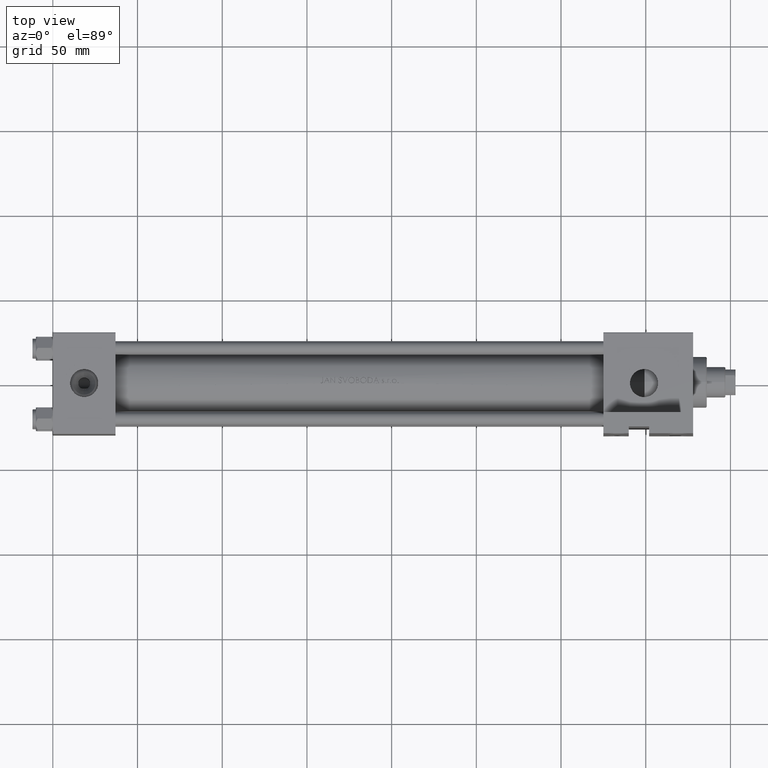
[diagram: clean part render]
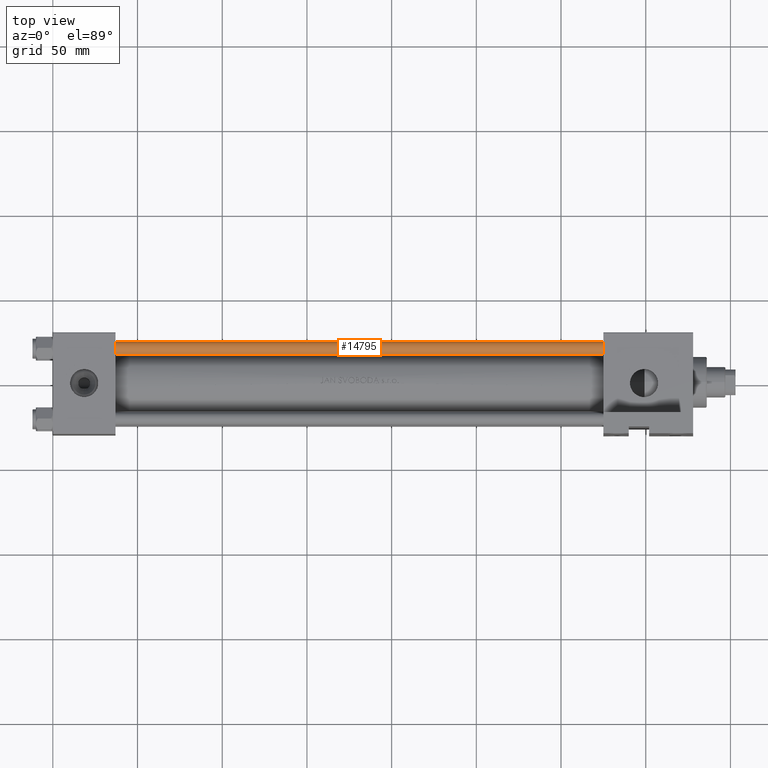
[diagram: same view with one face highlighted and labeled with its STEP entity id]
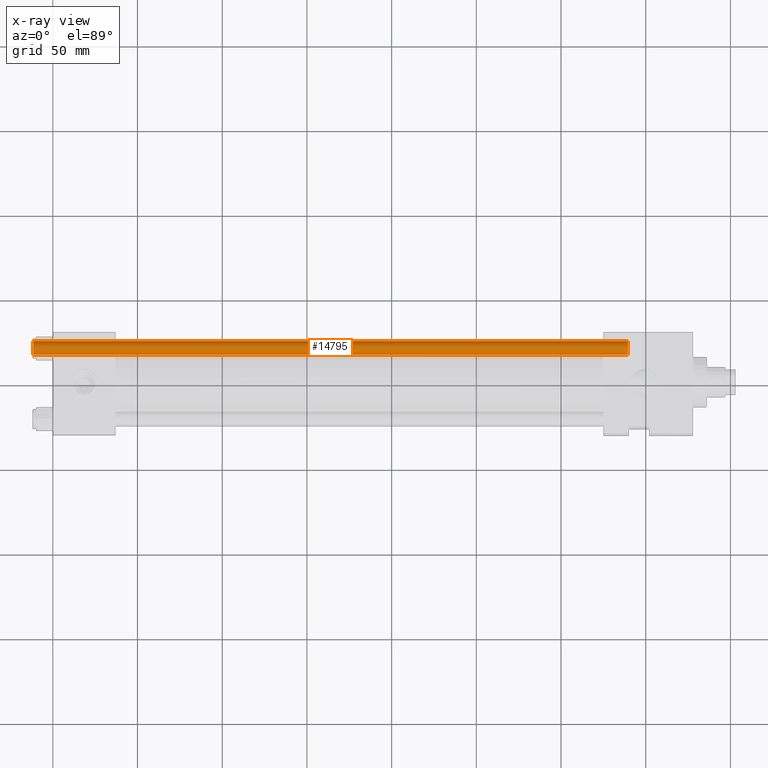
[diagram: x-ray of the same camera — body ghosted, the highlighted face saturated]
A machine part, top view. The second image highlights one B-rep face of the part: STEP entity #14795.
The next image is the same camera in x-ray: the body ghosted, the highlighted face saturated — about 0% of this face is hidden behind the body in this view.
In plain terms, the highlighted cylindrical surface (edge-blend (fillet) strip) has radius 4 mm, axis along (1, -0, 0).
Its self-contained STEP definition (entity closure, byte-faithful):
#753 = ORIENTED_EDGE ( 'NONE', *, *, #32899, .T. ) ;
#1308 = ORIENTED_EDGE ( 'NONE', *, *, #20317, .T. ) ;
#2740 = EDGE_CURVE ( 'NONE', #40880, #48445, #34976, .T. ) ;
#4893 = AXIS2_PLACEMENT_3D ( 'NONE', #33549, #28442, #28201 ) ;
#5675 = CIRCLE ( 'NONE', #4893, 4.000000000000000000 ) ;
#7960 = ORIENTED_EDGE ( 'NONE', *, *, #2740, .F. ) ;
#9389 = CARTESIAN_POINT ( 'NONE',  ( 0.000000000000000000, 0.000000000000000000, 0.5000000000000004441 ) ) ;
#9900 = FACE_OUTER_BOUND ( 'NONE', #18352, .T. ) ;
#10963 = VERTEX_POINT ( 'NONE', #15746 ) ;
#11536 = DIRECTION ( 'NONE',  ( -0.000000000000000000, -0.000000000000000000, -1.000000000000000000 ) ) ;
#12838 = CYLINDRICAL_SURFACE ( 'NONE', #14259, 4.000000000000000000 ) ;
#14259 = AXIS2_PLACEMENT_3D ( 'NONE', #28364, #35049, #16308 ) ;
#14795 = ADVANCED_FACE ( 'NONE', ( #9900 ), #12838, .T. ) ;
#15746 = CARTESIAN_POINT ( 'NONE',  ( -4.000000000000000000, 0.000000000000000000, 0.5000000000000004441 ) ) ;
#16308 = DIRECTION ( 'NONE',  ( -1.000000000000000000, 0.000000000000000000, 0.000000000000000000 ) ) ;
#16738 = CARTESIAN_POINT ( 'NONE',  ( 4.000000000000000000, 4.898587196589412829E-16, 351.5000000000000000 ) ) ;
#17564 = AXIS2_PLACEMENT_3D ( 'NONE', #9389, #20727, #32556 ) ;
#18352 = EDGE_LOOP ( 'NONE', ( #7960, #753, #36284, #1308 ) ) ;
#19902 = LINE ( 'NONE', #26814, #37346 ) ;
#20317 = EDGE_CURVE ( 'NONE', #10963, #48445, #20702, .T. ) ;
#20419 = DIRECTION ( 'NONE',  ( -0.000000000000000000, -0.000000000000000000, -1.000000000000000000 ) ) ;
#20702 = CIRCLE ( 'NONE', #17564, 4.000000000000000000 ) ;
#20727 = DIRECTION ( 'NONE',  ( -0.000000000000000000, -0.000000000000000000, 1.000000000000000000 ) ) ;
#26814 = CARTESIAN_POINT ( 'NONE',  ( -4.000000000000000000, 0.000000000000000000, 352.0000000000000000 ) ) ;
#28201 = DIRECTION ( 'NONE',  ( 1.000000000000000000, 0.000000000000000000, 0.000000000000000000 ) ) ;
#28364 = CARTESIAN_POINT ( 'NONE',  ( 0.000000000000000000, 0.000000000000000000, 352.0000000000000000 ) ) ;
#28442 = DIRECTION ( 'NONE',  ( 0.000000000000000000, 0.000000000000000000, -1.000000000000000000 ) ) ;
#29046 = CARTESIAN_POINT ( 'NONE',  ( -4.000000000000000000, 0.000000000000000000, 351.5000000000000000 ) ) ;
#31120 = VERTEX_POINT ( 'NONE', #29046 ) ;
#32556 = DIRECTION ( 'NONE',  ( 1.000000000000000000, 0.000000000000000000, 0.000000000000000000 ) ) ;
#32899 = EDGE_CURVE ( 'NONE', #40880, #31120, #5675, .T. ) ;
#33445 = VECTOR ( 'NONE', #20419, 1000.000000000000000 ) ;
#33549 = CARTESIAN_POINT ( 'NONE',  ( 0.000000000000000000, 0.000000000000000000, 351.5000000000000000 ) ) ;
#34310 = CARTESIAN_POINT ( 'NONE',  ( 4.000000000000000000, 4.898587196589412829E-16, 0.5000000000000004441 ) ) ;
#34723 = CARTESIAN_POINT ( 'NONE',  ( 4.000000000000000000, 4.898587196589412829E-16, 352.0000000000000000 ) ) ;
#34976 = LINE ( 'NONE', #34723, #33445 ) ;
#35049 = DIRECTION ( 'NONE',  ( -0.000000000000000000, -0.000000000000000000, -1.000000000000000000 ) ) ;
#36284 = ORIENTED_EDGE ( 'NONE', *, *, #41122, .T. ) ;
#37346 = VECTOR ( 'NONE', #11536, 1000.000000000000000 ) ;
#40880 = VERTEX_POINT ( 'NONE', #16738 ) ;
#41122 = EDGE_CURVE ( 'NONE', #31120, #10963, #19902, .T. ) ;
#48445 = VERTEX_POINT ( 'NONE', #34310 ) ;